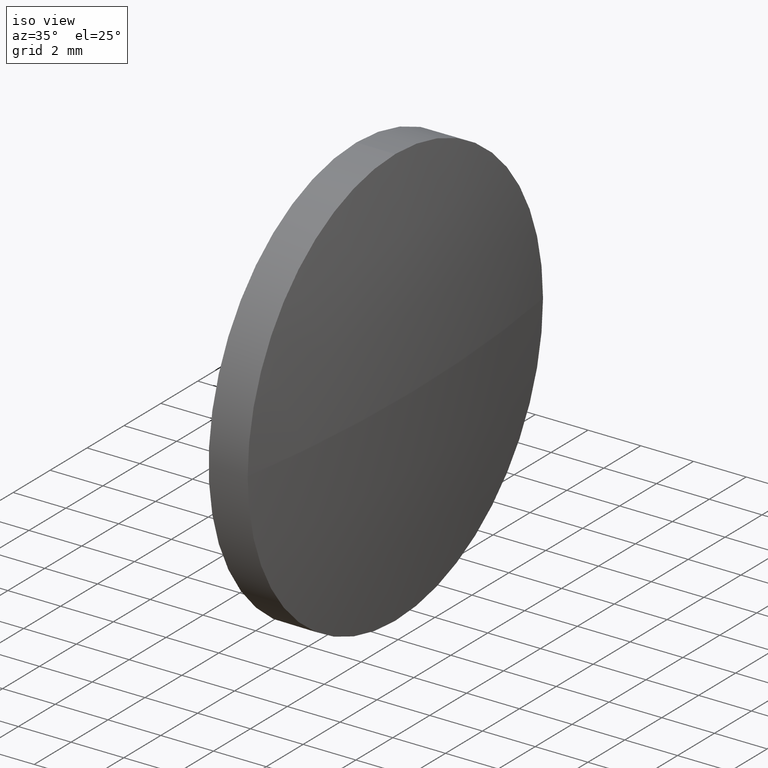
[diagram: clean part render]
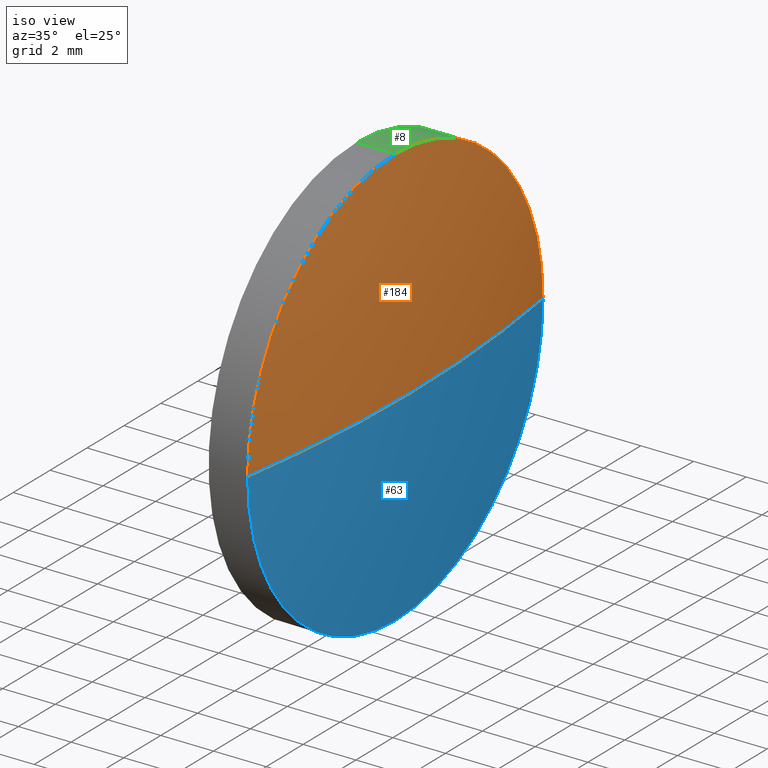
[diagram: same view with three faces highlighted in distinct colors, each labeled with its STEP entity id]
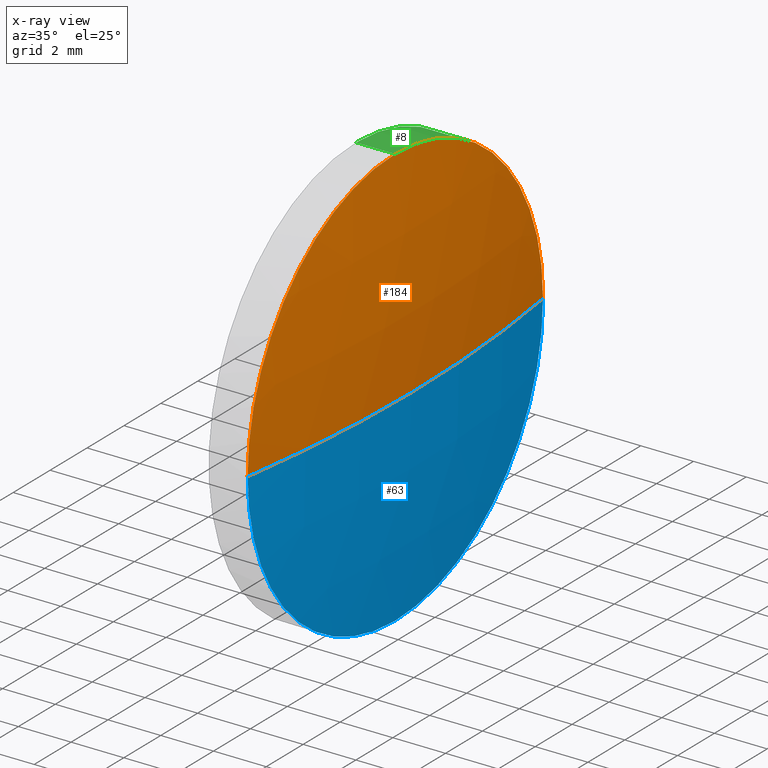
[diagram: x-ray of the same camera — body ghosted, the three highlighted faces saturated]
A machine part, iso view with three faces highlighted in distinct colors.
The next image is the same camera in x-ray (body ghosted, the three faces saturated) — at least one of them is partly hidden behind the body in this view.
Their STEP definitions:

[orange] entity #184 — the highlighted spherical surface has radius 51.9229 mm.
#5 = DIRECTION ( 'NONE',  ( 0.0000000000000000000, 0.0000000000000000000, 1.000000000000000000 ) ) ;
#19 = SPHERICAL_SURFACE ( 'NONE', #61, 51.92290322580650000 ) ;
#20 = EDGE_LOOP ( 'NONE', ( #128, #108, #174, #146 ) ) ;
#21 = CARTESIAN_POINT ( 'NONE',  ( 667.5536510589195100, 100.4895184398132200, 9.797174393178378000E-016 ) ) ;
#22 = CARTESIAN_POINT ( 'NONE',  ( 668.1736510589194000, 92.48951843981359400, 0.0000000000000000000 ) ) ;
#29 = CARTESIAN_POINT ( 'NONE',  ( 667.5536510589195100, 84.48951843981356500, 0.0000000000000000000 ) ) ;
#32 = VERTEX_POINT ( 'NONE', #29 ) ;
#50 = CARTESIAN_POINT ( 'NONE',  ( 667.5536510589195100, 92.48951843981319600, 0.0000000000000000000 ) ) ;
#52 = DIRECTION ( 'NONE',  ( 0.0000000000000000000, -1.224646799147353200E-016, 1.000000000000000000 ) ) ;
#55 = AXIS2_PLACEMENT_3D ( 'NONE', #129, #150, #59 ) ;
#59 = DIRECTION ( 'NONE',  ( -1.000000000000000000, 0.0000000000000000000, 0.0000000000000000000 ) ) ;
#60 = CARTESIAN_POINT ( 'NONE',  ( 667.5536510589195100, 92.48951843981319600, 0.0000000000000000000 ) ) ;
#61 = AXIS2_PLACEMENT_3D ( 'NONE', #179, #5, #168 ) ;
#62 = CARTESIAN_POINT ( 'NONE',  ( 616.2507478331130000, 92.48951843981359400, 0.0000000000000000000 ) ) ;
#65 = DIRECTION ( 'NONE',  ( 0.0000000000000000000, -1.000000000000000000, -1.224646799147353200E-016 ) ) ;
#66 = CIRCLE ( 'NONE', #55, 51.92290322580650800 ) ;
#76 = CARTESIAN_POINT ( 'NONE',  ( 667.5536510589195100, 92.48951843981319600, 8.000000000000007100 ) ) ;
#83 = VERTEX_POINT ( 'NONE', #76 ) ;
#90 = DIRECTION ( 'NONE',  ( 0.0000000000000000000, 0.0000000000000000000, 1.000000000000000000 ) ) ;
#99 = VERTEX_POINT ( 'NONE', #21 ) ;
#100 = CIRCLE ( 'NONE', #130, 8.000000000000007100 ) ;
#108 = ORIENTED_EDGE ( 'NONE', *, *, #177, .T. ) ;
#116 = DIRECTION ( 'NONE',  ( 0.0000000000000000000, 0.0000000000000000000, 1.000000000000000000 ) ) ;
#119 = VERTEX_POINT ( 'NONE', #22 ) ;
#123 = FACE_OUTER_BOUND ( 'NONE', #20, .T. ) ;
#128 = ORIENTED_EDGE ( 'NONE', *, *, #186, .F. ) ;
#129 = CARTESIAN_POINT ( 'NONE',  ( 616.2507478331130000, 92.48951843981359400, 0.0000000000000000000 ) ) ;
#130 = AXIS2_PLACEMENT_3D ( 'NONE', #50, #155, #90 ) ;
#138 = CIRCLE ( 'NONE', #166, 8.000000000000007100 ) ;
#146 = ORIENTED_EDGE ( 'NONE', *, *, #172, .F. ) ;
#148 = EDGE_CURVE ( 'NONE', #83, #99, #138, .T. ) ;
#150 = DIRECTION ( 'NONE',  ( 0.0000000000000000000, 0.0000000000000000000, -1.000000000000000000 ) ) ;
#153 = DIRECTION ( 'NONE',  ( -1.000000000000000000, -0.0000000000000000000, -0.0000000000000000000 ) ) ;
#155 = DIRECTION ( 'NONE',  ( -1.000000000000000000, -0.0000000000000000000, -0.0000000000000000000 ) ) ;
#166 = AXIS2_PLACEMENT_3D ( 'NONE', #60, #153, #116 ) ;
#168 = DIRECTION ( 'NONE',  ( 0.0000000000000000000, -1.000000000000000000, 0.0000000000000000000 ) ) ;
#172 = EDGE_CURVE ( 'NONE', #32, #83, #100, .T. ) ;
#174 = ORIENTED_EDGE ( 'NONE', *, *, #148, .F. ) ;
#176 = CIRCLE ( 'NONE', #182, 51.92290322580650000 ) ;
#177 = EDGE_CURVE ( 'NONE', #119, #99, #176, .T. ) ;
#179 = CARTESIAN_POINT ( 'NONE',  ( 616.2507478331130000, 92.48951843981359400, 0.0000000000000000000 ) ) ;
#182 = AXIS2_PLACEMENT_3D ( 'NONE', #62, #52, #65 ) ;
#184 = ADVANCED_FACE ( 'NONE', ( #123 ), #19, .T. ) ;
#186 = EDGE_CURVE ( 'NONE', #119, #32, #66, .T. ) ;

[blue] entity #63 — the highlighted spherical surface has radius 51.9229 mm.
#1 = EDGE_CURVE ( 'NONE', #99, #56, #101, .T. ) ;
#4 = CARTESIAN_POINT ( 'NONE',  ( 667.5536510589195100, 92.48951843981319600, -8.000000000000007100 ) ) ;
#9 = DIRECTION ( 'NONE',  ( 0.0000000000000000000, -1.000000000000000000, 0.0000000000000000000 ) ) ;
#12 = ORIENTED_EDGE ( 'NONE', *, *, #177, .F. ) ;
#13 = AXIS2_PLACEMENT_3D ( 'NONE', #144, #31, #9 ) ;
#15 = ORIENTED_EDGE ( 'NONE', *, *, #154, .F. ) ;
#21 = CARTESIAN_POINT ( 'NONE',  ( 667.5536510589195100, 100.4895184398132200, 9.797174393178378000E-016 ) ) ;
#22 = CARTESIAN_POINT ( 'NONE',  ( 668.1736510589194000, 92.48951843981359400, 0.0000000000000000000 ) ) ;
#29 = CARTESIAN_POINT ( 'NONE',  ( 667.5536510589195100, 84.48951843981356500, 0.0000000000000000000 ) ) ;
#31 = DIRECTION ( 'NONE',  ( 0.0000000000000000000, 0.0000000000000000000, 1.000000000000000000 ) ) ;
#32 = VERTEX_POINT ( 'NONE', #29 ) ;
#38 = AXIS2_PLACEMENT_3D ( 'NONE', #167, #105, #85 ) ;
#44 = SPHERICAL_SURFACE ( 'NONE', #13, 51.92290322580650000 ) ;
#46 = CARTESIAN_POINT ( 'NONE',  ( 667.5536510589195100, 92.48951843981319600, 0.0000000000000000000 ) ) ;
#52 = DIRECTION ( 'NONE',  ( 0.0000000000000000000, -1.224646799147353200E-016, 1.000000000000000000 ) ) ;
#55 = AXIS2_PLACEMENT_3D ( 'NONE', #129, #150, #59 ) ;
#56 = VERTEX_POINT ( 'NONE', #4 ) ;
#59 = DIRECTION ( 'NONE',  ( -1.000000000000000000, 0.0000000000000000000, 0.0000000000000000000 ) ) ;
#62 = CARTESIAN_POINT ( 'NONE',  ( 616.2507478331130000, 92.48951843981359400, 0.0000000000000000000 ) ) ;
#63 = ADVANCED_FACE ( 'NONE', ( #183 ), #44, .T. ) ;
#65 = DIRECTION ( 'NONE',  ( 0.0000000000000000000, -1.000000000000000000, -1.224646799147353200E-016 ) ) ;
#66 = CIRCLE ( 'NONE', #55, 51.92290322580650800 ) ;
#72 = CIRCLE ( 'NONE', #38, 8.000000000000007100 ) ;
#85 = DIRECTION ( 'NONE',  ( 0.0000000000000000000, 0.0000000000000000000, 1.000000000000000000 ) ) ;
#99 = VERTEX_POINT ( 'NONE', #21 ) ;
#101 = CIRCLE ( 'NONE', #141, 8.000000000000007100 ) ;
#105 = DIRECTION ( 'NONE',  ( -1.000000000000000000, -0.0000000000000000000, -0.0000000000000000000 ) ) ;
#107 = ORIENTED_EDGE ( 'NONE', *, *, #1, .F. ) ;
#119 = VERTEX_POINT ( 'NONE', #22 ) ;
#129 = CARTESIAN_POINT ( 'NONE',  ( 616.2507478331130000, 92.48951843981359400, 0.0000000000000000000 ) ) ;
#139 = ORIENTED_EDGE ( 'NONE', *, *, #186, .T. ) ;
#141 = AXIS2_PLACEMENT_3D ( 'NONE', #46, #147, #175 ) ;
#144 = CARTESIAN_POINT ( 'NONE',  ( 616.2507478331130000, 92.48951843981359400, 0.0000000000000000000 ) ) ;
#147 = DIRECTION ( 'NONE',  ( -1.000000000000000000, -0.0000000000000000000, -0.0000000000000000000 ) ) ;
#150 = DIRECTION ( 'NONE',  ( 0.0000000000000000000, 0.0000000000000000000, -1.000000000000000000 ) ) ;
#154 = EDGE_CURVE ( 'NONE', #56, #32, #72, .T. ) ;
#159 = EDGE_LOOP ( 'NONE', ( #12, #139, #15, #107 ) ) ;
#167 = CARTESIAN_POINT ( 'NONE',  ( 667.5536510589195100, 92.48951843981319600, 0.0000000000000000000 ) ) ;
#175 = DIRECTION ( 'NONE',  ( 0.0000000000000000000, 0.0000000000000000000, 1.000000000000000000 ) ) ;
#176 = CIRCLE ( 'NONE', #182, 51.92290322580650000 ) ;
#177 = EDGE_CURVE ( 'NONE', #119, #99, #176, .T. ) ;
#182 = AXIS2_PLACEMENT_3D ( 'NONE', #62, #52, #65 ) ;
#183 = FACE_OUTER_BOUND ( 'NONE', #159, .T. ) ;
#186 = EDGE_CURVE ( 'NONE', #119, #32, #66, .T. ) ;

[green] entity #8 — the highlighted cylindrical surface (partial cylindrical patch) has radius 8 mm, axis along (-1, -0, -0).
#1 = EDGE_CURVE ( 'NONE', #99, #56, #101, .T. ) ;
#3 = FACE_OUTER_BOUND ( 'NONE', #47, .T. ) ;
#4 = CARTESIAN_POINT ( 'NONE',  ( 667.5536510589195100, 92.48951843981319600, -8.000000000000007100 ) ) ;
#7 = DIRECTION ( 'NONE',  ( -1.000000000000000000, -0.0000000000000000000, -0.0000000000000000000 ) ) ;
#8 = ADVANCED_FACE ( 'NONE', ( #3 ), #35, .T. ) ;
#21 = CARTESIAN_POINT ( 'NONE',  ( 667.5536510589195100, 100.4895184398132200, 9.797174393178378000E-016 ) ) ;
#27 = VERTEX_POINT ( 'NONE', #149 ) ;
#35 = CYLINDRICAL_SURFACE ( 'NONE', #97, 8.000000000000007100 ) ;
#37 = ORIENTED_EDGE ( 'NONE', *, *, #162, .T. ) ;
#42 = ORIENTED_EDGE ( 'NONE', *, *, #1, .T. ) ;
#45 = ORIENTED_EDGE ( 'NONE', *, *, #148, .T. ) ;
#46 = CARTESIAN_POINT ( 'NONE',  ( 667.5536510589195100, 92.48951843981319600, 0.0000000000000000000 ) ) ;
#47 = EDGE_LOOP ( 'NONE', ( #42, #37, #170, #113, #45 ) ) ;
#48 = DIRECTION ( 'NONE',  ( -1.000000000000000000, -0.0000000000000000000, -0.0000000000000000000 ) ) ;
#56 = VERTEX_POINT ( 'NONE', #4 ) ;
#60 = CARTESIAN_POINT ( 'NONE',  ( 667.5536510589195100, 92.48951843981319600, 0.0000000000000000000 ) ) ;
#64 = DIRECTION ( 'NONE',  ( -1.000000000000000000, -0.0000000000000000000, -0.0000000000000000000 ) ) ;
#73 = EDGE_CURVE ( 'NONE', #27, #140, #89, .T. ) ;
#74 = CARTESIAN_POINT ( 'NONE',  ( 664.1508343540738200, 92.48951843981319600, 0.0000000000000000000 ) ) ;
#76 = CARTESIAN_POINT ( 'NONE',  ( 667.5536510589195100, 92.48951843981319600, 8.000000000000007100 ) ) ;
#79 = LINE ( 'NONE', #134, #185 ) ;
#83 = VERTEX_POINT ( 'NONE', #76 ) ;
#84 = EDGE_CURVE ( 'NONE', #83, #27, #112, .T. ) ;
#89 = CIRCLE ( 'NONE', #110, 8.000000000000007100 ) ;
#97 = AXIS2_PLACEMENT_3D ( 'NONE', #74, #127, #163 ) ;
#99 = VERTEX_POINT ( 'NONE', #21 ) ;
#101 = CIRCLE ( 'NONE', #141, 8.000000000000007100 ) ;
#110 = AXIS2_PLACEMENT_3D ( 'NONE', #151, #7, #156 ) ;
#112 = LINE ( 'NONE', #165, #142 ) ;
#113 = ORIENTED_EDGE ( 'NONE', *, *, #84, .F. ) ;
#116 = DIRECTION ( 'NONE',  ( 0.0000000000000000000, 0.0000000000000000000, 1.000000000000000000 ) ) ;
#127 = DIRECTION ( 'NONE',  ( -1.000000000000000000, -0.0000000000000000000, -0.0000000000000000000 ) ) ;
#134 = CARTESIAN_POINT ( 'NONE',  ( 664.1508343540738200, 92.48951843981319600, -8.000000000000007100 ) ) ;
#135 = CARTESIAN_POINT ( 'NONE',  ( 666.0736510589196100, 92.48951843981319600, -8.000000000000007100 ) ) ;
#138 = CIRCLE ( 'NONE', #166, 8.000000000000007100 ) ;
#140 = VERTEX_POINT ( 'NONE', #135 ) ;
#141 = AXIS2_PLACEMENT_3D ( 'NONE', #46, #147, #175 ) ;
#142 = VECTOR ( 'NONE', #64, 1000.000000000000000 ) ;
#147 = DIRECTION ( 'NONE',  ( -1.000000000000000000, -0.0000000000000000000, -0.0000000000000000000 ) ) ;
#148 = EDGE_CURVE ( 'NONE', #83, #99, #138, .T. ) ;
#149 = CARTESIAN_POINT ( 'NONE',  ( 666.0736510589196100, 92.48951843981319600, 8.000000000000007100 ) ) ;
#151 = CARTESIAN_POINT ( 'NONE',  ( 666.0736510589196100, 92.48951843981319600, 0.0000000000000000000 ) ) ;
#153 = DIRECTION ( 'NONE',  ( -1.000000000000000000, -0.0000000000000000000, -0.0000000000000000000 ) ) ;
#156 = DIRECTION ( 'NONE',  ( 0.0000000000000000000, 0.0000000000000000000, 1.000000000000000000 ) ) ;
#162 = EDGE_CURVE ( 'NONE', #56, #140, #79, .T. ) ;
#163 = DIRECTION ( 'NONE',  ( 0.0000000000000000000, 0.0000000000000000000, 1.000000000000000000 ) ) ;
#165 = CARTESIAN_POINT ( 'NONE',  ( 664.1508343540738200, 92.48951843981319600, 8.000000000000007100 ) ) ;
#166 = AXIS2_PLACEMENT_3D ( 'NONE', #60, #153, #116 ) ;
#170 = ORIENTED_EDGE ( 'NONE', *, *, #73, .F. ) ;
#175 = DIRECTION ( 'NONE',  ( 0.0000000000000000000, 0.0000000000000000000, 1.000000000000000000 ) ) ;
#185 = VECTOR ( 'NONE', #48, 1000.000000000000000 ) ;